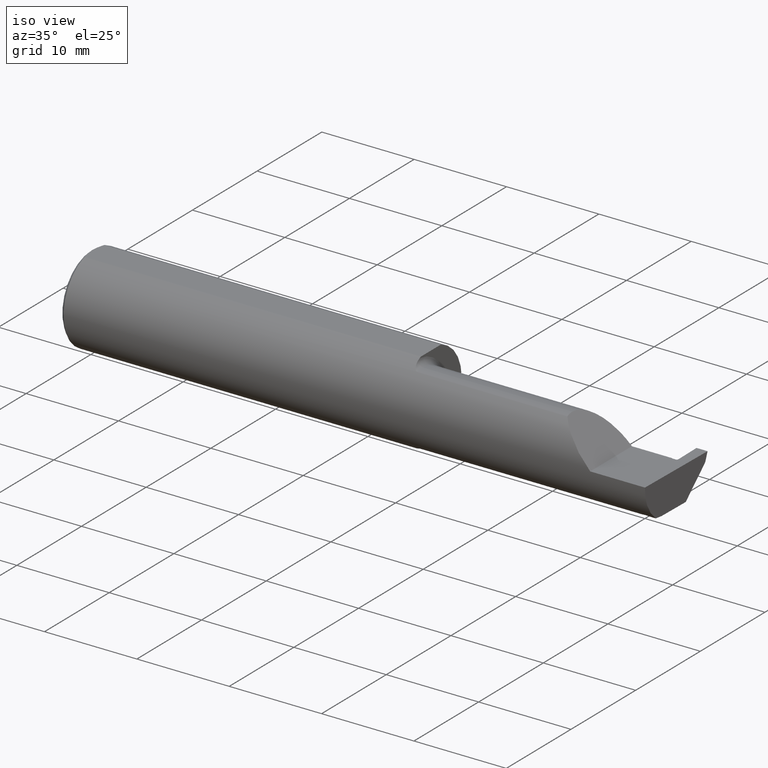
[diagram: clean part render]
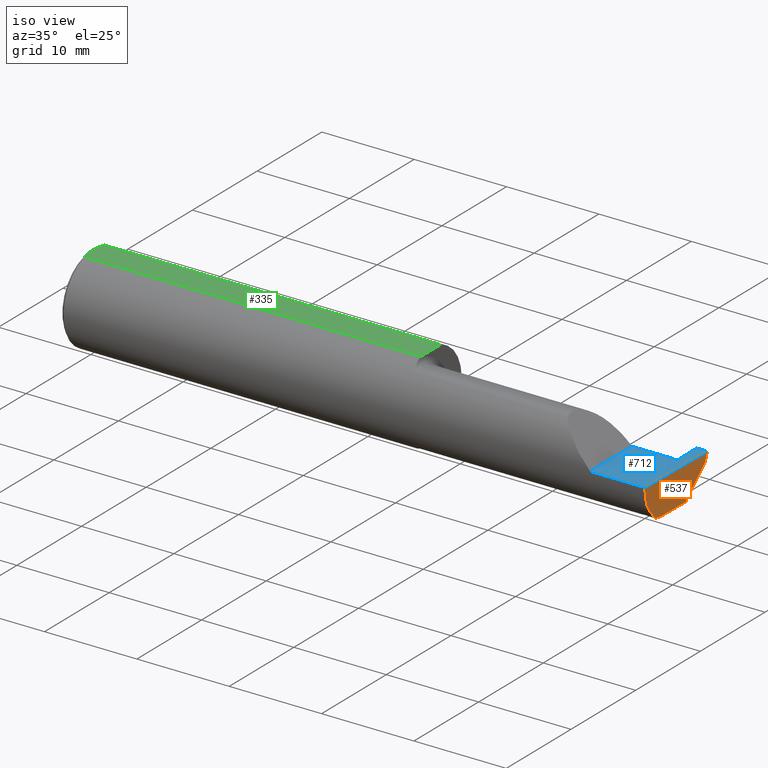
[diagram: same view with three faces highlighted in distinct colors, each labeled with its STEP entity id]
A machine part, iso view with three faces highlighted in distinct colors.
Their STEP definitions:

[orange] entity #537 — the highlighted planar face has unit normal (-0.9995, 0.0174, 0.0262).
#23 = CARTESIAN_POINT ( 'NONE',  ( 2.490903355898019367, -0.1172600179964007061, -0.1461167706989303094 ) ) ;
#25 = CARTESIAN_POINT ( 'NONE',  ( 2.490903355898019367, -0.1172600179964007061, -0.1461167706989303094 ) ) ;
#38 = FACE_OUTER_BOUND ( 'NONE', #747, .T. ) ;
#52 = ORIENTED_EDGE ( 'NONE', *, *, #253, .T. ) ;
#56 = DIRECTION ( 'NONE',  ( -0.01745240643727703073, -0.9998476951563912696, 0.000000000000000000 ) ) ;
#57 = ORIENTED_EDGE ( 'NONE', *, *, #1023, .F. ) ;
#65 = CARTESIAN_POINT ( 'NONE',  ( 2.493506715846705468, -0.1873499999999999888, 0.000000000000000000 ) ) ;
#88 = AXIS2_PLACEMENT_3D ( 'NONE', #454, #765, #444 ) ;
#120 = EDGE_CURVE ( 'NONE', #434, #223, #339, .T. ) ;
#127 = EDGE_CURVE ( 'NONE', #693, #223, #656, .T. ) ;
#151 = CARTESIAN_POINT ( 'NONE',  ( 2.498789266617083449, 0.1723030515431495657, -0.03799999999999999212 ) ) ;
#196 = LINE ( 'NONE', #766, #1004 ) ;
#223 = VERTEX_POINT ( 'NONE', #294 ) ;
#235 = VERTEX_POINT ( 'NONE', #538 ) ;
#245 = LINE ( 'NONE', #271, #982 ) ;
#253 = EDGE_CURVE ( 'NONE', #235, #295, #196, .T. ) ;
#271 = CARTESIAN_POINT ( 'NONE',  ( 2.498695265107655938, 0.1701492753368748778, -0.04015377620627467309 ) ) ;
#285 = PLANE ( 'NONE',  #88 ) ;
#294 = CARTESIAN_POINT ( 'NONE',  ( 2.491393556036329837, -0.08334999999999996578, -0.1499999999999999944 ) ) ;
#295 = VERTEX_POINT ( 'NONE', #65 ) ;
#297 = CARTESIAN_POINT ( 'NONE',  ( 2.499908263133603814, 0.1837144758152614021, -0.002879247381999359371 ) ) ;
#337 = DIRECTION ( 'NONE',  ( -0.03084697155452398656, -0.7067702824630919256, -0.7067702824630897052 ) ) ;
#339 =( BOUNDED_CURVE ( )  B_SPLINE_CURVE ( 3, ( #25, #344, #992, #913 ),
 .UNSPECIFIED., .F., .F. ) 
 B_SPLINE_CURVE_WITH_KNOTS ( ( 4, 4 ),
 ( 0.3598356817164758414, 0.5878737167659208174 ),
 .UNSPECIFIED. ) 
 CURVE ( )  GEOMETRIC_REPRESENTATION_ITEM ( )  RATIONAL_B_SPLINE_CURVE ( ( 1.000000000000000000, 0.9956712472009929815, 0.9956712472009929815, 1.000000000000000000 ) ) 
 REPRESENTATION_ITEM ( '' )  );
#344 = CARTESIAN_POINT ( 'NONE',  ( 2.491029992219911282, -0.1061291577212409853, -0.1486999626928446061 ) ) ;
#363 = CARTESIAN_POINT ( 'NONE',  ( 2.494809345111306254, 0.1123404250442412711, -0.1499999999999999944 ) ) ;
#384 = LINE ( 'NONE', #297, #831 ) ;
#404 =( BOUNDED_CURVE ( )  B_SPLINE_CURVE ( 3, ( #741, #499, #503, #838 ),
 .UNSPECIFIED., .F., .T. ) 
 B_SPLINE_CURVE_WITH_KNOTS ( ( 4, 4 ),
 ( 0.08839520912052870050, 0.9829226100289757406 ),
 .UNSPECIFIED. ) 
 CURVE ( )  GEOMETRIC_REPRESENTATION_ITEM ( )  RATIONAL_B_SPLINE_CURVE ( ( 1.000000000000000000, 0.9344226172588803170, 0.9344226172588803170, 1.000000000000000000 ) ) 
 REPRESENTATION_ITEM ( '' )  );
#429 = ORIENTED_EDGE ( 'NONE', *, *, #720, .F. ) ;
#434 = VERTEX_POINT ( 'NONE', #23 ) ;
#444 = DIRECTION ( 'NONE',  ( 0.02618093305822682959, 0.000000000000000000, 0.9996572206232497981 ) ) ;
#454 = CARTESIAN_POINT ( 'NONE',  ( 2.500000000000000000, 0.1846500000000000363, 0.000000000000000000 ) ) ;
#499 = CARTESIAN_POINT ( 'NONE',  ( 2.491063981715931686, -0.1623470442677541759, -0.1099340280425337990 ) ) ;
#503 = CARTESIAN_POINT ( 'NONE',  ( 2.491992669264299742, -0.1873499999999999888, -0.05781030015605115313 ) ) ;
#537 = ADVANCED_FACE ( 'NONE', ( #38 ), #285, .F. ) ;
#538 = CARTESIAN_POINT ( 'NONE',  ( 2.500000000000000000, 0.1846500000000000363, 0.000000000000000000 ) ) ;
#623 = DIRECTION ( 'NONE',  ( -0.03028809442608968241, -0.3088752205991470157, -0.9506201814793669991 ) ) ;
#626 = VERTEX_POINT ( 'NONE', #151 ) ;
#654 = ORIENTED_EDGE ( 'NONE', *, *, #120, .T. ) ;
#656 = LINE ( 'NONE', #363, #871 ) ;
#693 = VERTEX_POINT ( 'NONE', #788 ) ;
#720 = EDGE_CURVE ( 'NONE', #235, #626, #384, .T. ) ;
#741 = CARTESIAN_POINT ( 'NONE',  ( 2.490903355898019367, -0.1172600179964007061, -0.1461167706989303094 ) ) ;
#747 = EDGE_LOOP ( 'NONE', ( #654, #919, #57, #429, #52, #828 ) ) ;
#765 = DIRECTION ( 'NONE',  ( -0.9995050723230146650, 0.01744642593347454917, 0.02617694830787320806 ) ) ;
#766 = CARTESIAN_POINT ( 'NONE',  ( 2.500000000000000000, 0.1846500000000000363, 0.000000000000000000 ) ) ;
#788 = CARTESIAN_POINT ( 'NONE',  ( 2.493901029378150724, 0.06030305154314920951, -0.1499999999999999944 ) ) ;
#828 = ORIENTED_EDGE ( 'NONE', *, *, #1014, .F. ) ;
#831 = VECTOR ( 'NONE', #623, 39.37007874015748854 ) ;
#838 = CARTESIAN_POINT ( 'NONE',  ( 2.493506715846705468, -0.1873499999999999888, 0.000000000000000000 ) ) ;
#871 = VECTOR ( 'NONE', #1013, 39.37007874015748143 ) ;
#913 = CARTESIAN_POINT ( 'NONE',  ( 2.491393556036329837, -0.08334999999999996578, -0.1499999999999999944 ) ) ;
#919 = ORIENTED_EDGE ( 'NONE', *, *, #127, .F. ) ;
#982 = VECTOR ( 'NONE', #337, 39.37007874015748143 ) ;
#992 = CARTESIAN_POINT ( 'NONE',  ( 2.491194102659540111, -0.09477667630339421667, -0.1499999999999999944 ) ) ;
#1004 = VECTOR ( 'NONE', #56, 39.37007874015748143 ) ;
#1013 = DIRECTION ( 'NONE',  ( -0.01745240643727703073, -0.9998476951563912696, 0.000000000000000000 ) ) ;
#1014 = EDGE_CURVE ( 'NONE', #434, #295, #404, .T. ) ;
#1023 = EDGE_CURVE ( 'NONE', #626, #693, #245, .T. ) ;

[blue] entity #712 — the highlighted planar face has unit normal (-0, 0, -1).
#8 = DIRECTION ( 'NONE',  ( -0.000000000000000000, 1.000000000000000000, -0.000000000000000000 ) ) ;
#44 = CARTESIAN_POINT ( 'NONE',  ( 2.260000000000000231, -0.1873499999999999888, 2.939152317953647352E-17 ) ) ;
#46 = VERTEX_POINT ( 'NONE', #226 ) ;
#56 = DIRECTION ( 'NONE',  ( -0.01745240643727703073, -0.9998476951563912696, 0.000000000000000000 ) ) ;
#59 = EDGE_CURVE ( 'NONE', #970, #676, #729, .T. ) ;
#65 = CARTESIAN_POINT ( 'NONE',  ( 2.493506715846705468, -0.1873499999999999888, 0.000000000000000000 ) ) ;
#68 = CARTESIAN_POINT ( 'NONE',  ( 2.260000000000000231, -0.2000000000000000111, 2.939152317953647352E-17 ) ) ;
#96 = EDGE_LOOP ( 'NONE', ( #853, #993, #119, #456, #470, #214, #1032, #609, #519 ) ) ;
#115 = CARTESIAN_POINT ( 'NONE',  ( 2.452999999986550161, 0.1846500000000000363, -3.367778697655196529E-19 ) ) ;
#116 = CARTESIAN_POINT ( 'NONE',  ( 3.749399456654646757E-32, -0.1873499999999999888, 3.061616997868384127E-16 ) ) ;
#119 = ORIENTED_EDGE ( 'NONE', *, *, #524, .F. ) ;
#138 = DIRECTION ( 'NONE',  ( 1.000000000000000000, 0.000000000000000000, 0.000000000000000000 ) ) ;
#153 = CARTESIAN_POINT ( 'NONE',  ( 2.432999999988582296, 0.06464999999899190275, 1.634762610386960201E-10 ) ) ;
#154 = CARTESIAN_POINT ( 'NONE',  ( 2.447971356043616709, 0.06464999999999866687, -4.347370617524082342E-11 ) ) ;
#182 = EDGE_CURVE ( 'NONE', #295, #210, #518, .T. ) ;
#196 = LINE ( 'NONE', #766, #1004 ) ;
#197 = B_SPLINE_CURVE_WITH_KNOTS ( 'NONE', 1,
 ( #115, #798 ),
 .UNSPECIFIED., .F., .F.,
 ( 2, 2 ),
 ( 6.218240129447692272E-15, 0.002867533701424563632 ),
 .UNSPECIFIED. ) ;
#210 = VERTEX_POINT ( 'NONE', #44 ) ;
#214 = ORIENTED_EDGE ( 'NONE', *, *, #59, .T. ) ;
#215 = LINE ( 'NONE', #915, #1017 ) ;
#226 = CARTESIAN_POINT ( 'NONE',  ( 2.431000000000559602, 0.06664999999944079545, 9.135099441658725058E-18 ) ) ;
#228 = CARTESIAN_POINT ( 'NONE',  ( 2.500000000000000000, -0.2000000000000000111, 0.000000000000000000 ) ) ;
#235 = VERTEX_POINT ( 'NONE', #538 ) ;
#253 = EDGE_CURVE ( 'NONE', #235, #295, #196, .T. ) ;
#288 = AXIS2_PLACEMENT_3D ( 'NONE', #228, #1024, #872 ) ;
#295 = VERTEX_POINT ( 'NONE', #65 ) ;
#315 = CARTESIAN_POINT ( 'NONE',  ( 2.447971356043616709, 0.06464999999999866687, -4.347370617524082342E-11 ) ) ;
#319 = B_SPLINE_CURVE_WITH_KNOTS ( 'NONE', 1,
 ( #412, #875 ),
 .UNSPECIFIED., .F., .F.,
 ( 2, 2 ),
 ( 0.000000000000000000, 7.184204876150140906E-05 ),
 .UNSPECIFIED. ) ;
#340 = VERTEX_POINT ( 'NONE', #1031 ) ;
#412 = CARTESIAN_POINT ( 'NONE',  ( 2.432999999988582296, 0.06464999999899190275, 1.634762610386960201E-10 ) ) ;
#456 = ORIENTED_EDGE ( 'NONE', *, *, #617, .T. ) ;
#468 = FACE_OUTER_BOUND ( 'NONE', #96, .T. ) ;
#470 = ORIENTED_EDGE ( 'NONE', *, *, #987, .T. ) ;
#518 = LINE ( 'NONE', #116, #818 ) ;
#519 = ORIENTED_EDGE ( 'NONE', *, *, #978, .F. ) ;
#524 = EDGE_CURVE ( 'NONE', #897, #235, #596, .T. ) ;
#538 = CARTESIAN_POINT ( 'NONE',  ( 2.500000000000000000, 0.1846500000000000363, 0.000000000000000000 ) ) ;
#547 = VECTOR ( 'NONE', #695, 39.37007874015748143 ) ;
#554 = CARTESIAN_POINT ( 'NONE',  ( 2.432999999988582296, 0.06464999999899190275, 1.634762610386960201E-10 ) ) ;
#596 = LINE ( 'NONE', #601, #547 ) ;
#601 = CARTESIAN_POINT ( 'NONE',  ( 2.399999999999999911, 0.1846500000000000363, -3.367778697655196529E-19 ) ) ;
#609 = ORIENTED_EDGE ( 'NONE', *, *, #855, .F. ) ;
#617 = EDGE_CURVE ( 'NONE', #897, #340, #197, .T. ) ;
#622 = CARTESIAN_POINT ( 'NONE',  ( 2.452999999986550161, 0.1846500000000000363, -3.367778697655196529E-19 ) ) ;
#638 = LINE ( 'NONE', #68, #754 ) ;
#676 = VERTEX_POINT ( 'NONE', #554 ) ;
#684 = DIRECTION ( 'NONE',  ( -1.000000000000000000, -0.000000000000000000, -0.000000000000000000 ) ) ;
#695 = DIRECTION ( 'NONE',  ( 1.000000000000000000, -0.000000000000000000, -0.000000000000000000 ) ) ;
#703 = VERTEX_POINT ( 'NONE', #951 ) ;
#712 = ADVANCED_FACE ( 'NONE', ( #468 ), #962, .F. ) ;
#715 = CARTESIAN_POINT ( 'NONE',  ( 2.454970289910081593, 0.07177216684492375431, -4.877016447508004469E-11 ) ) ;
#729 = B_SPLINE_CURVE_WITH_KNOTS ( 'NONE', 1,
 ( #315, #153 ),
 .UNSPECIFIED., .F., .F.,
 ( 2, 2 ),
 ( 0.000000000000000000, 0.0003802724437978674543 ),
 .UNSPECIFIED. ) ;
#730 =( BOUNDED_CURVE ( )  B_SPLINE_CURVE ( 3, ( #715, #746, #909, #762 ),
 .UNSPECIFIED., .F., .F. ) 
 B_SPLINE_CURVE_WITH_KNOTS ( ( 4, 4 ),
 ( 1.301042606982605513E-18, 0.0002808519284744391900 ),
 .UNSPECIFIED. ) 
 CURVE ( )  GEOMETRIC_REPRESENTATION_ITEM ( )  RATIONAL_B_SPLINE_CURVE ( ( 1.000000000000000000, 0.8006061761999021531, 0.8006061761999021531, 1.000000000000000000 ) ) 
 REPRESENTATION_ITEM ( '' )  );
#746 = CARTESIAN_POINT ( 'NONE',  ( 2.455042847893950775, 0.06761532263369882112, -4.782921970906206398E-11 ) ) ;
#754 = VECTOR ( 'NONE', #8, 39.37007874015748143 ) ;
#762 = CARTESIAN_POINT ( 'NONE',  ( 2.447971356043616709, 0.06464999999999866687, -4.347370617524082342E-11 ) ) ;
#766 = CARTESIAN_POINT ( 'NONE',  ( 2.500000000000000000, 0.1846500000000000363, 0.000000000000000000 ) ) ;
#798 = CARTESIAN_POINT ( 'NONE',  ( 2.454970289910081593, 0.07177216684492375431, -4.877016447508004469E-11 ) ) ;
#818 = VECTOR ( 'NONE', #684, 39.37007874015748143 ) ;
#853 = ORIENTED_EDGE ( 'NONE', *, *, #182, .F. ) ;
#855 = EDGE_CURVE ( 'NONE', #703, #46, #215, .T. ) ;
#872 = DIRECTION ( 'NONE',  ( -1.000000000000000000, 0.000000000000000000, 1.224646799147353700E-16 ) ) ;
#875 = CARTESIAN_POINT ( 'NONE',  ( 2.431000000000559602, 0.06664999999944079545, 9.135099441658725058E-18 ) ) ;
#897 = VERTEX_POINT ( 'NONE', #622 ) ;
#909 = CARTESIAN_POINT ( 'NONE',  ( 2.452128833457462687, 0.06464999999995883762, -4.700298955626800752E-11 ) ) ;
#915 = CARTESIAN_POINT ( 'NONE',  ( 1.450000000000000178, 0.06665000000000002867, 1.285879139104721472E-16 ) ) ;
#916 = EDGE_CURVE ( 'NONE', #676, #46, #319, .T. ) ;
#951 = CARTESIAN_POINT ( 'NONE',  ( 2.260000000000000231, 0.06665000000000002867, 2.939152317953647352E-17 ) ) ;
#962 = PLANE ( 'NONE',  #288 ) ;
#970 = VERTEX_POINT ( 'NONE', #154 ) ;
#978 = EDGE_CURVE ( 'NONE', #210, #703, #638, .T. ) ;
#987 = EDGE_CURVE ( 'NONE', #340, #970, #730, .T. ) ;
#993 = ORIENTED_EDGE ( 'NONE', *, *, #253, .F. ) ;
#1004 = VECTOR ( 'NONE', #56, 39.37007874015748143 ) ;
#1017 = VECTOR ( 'NONE', #138, 39.37007874015748143 ) ;
#1024 = DIRECTION ( 'NONE',  ( -1.224646799147353700E-16, 0.000000000000000000, -1.000000000000000000 ) ) ;
#1031 = CARTESIAN_POINT ( 'NONE',  ( 2.454970289910081593, 0.07177216684492375431, -4.877016447508004469E-11 ) ) ;
#1032 = ORIENTED_EDGE ( 'NONE', *, *, #916, .T. ) ;

[green] entity #335 — the highlighted planar face has unit normal (0, -0, 1).
#9 = ORIENTED_EDGE ( 'NONE', *, *, #84, .T. ) ;
#21 = ORIENTED_EDGE ( 'NONE', *, *, #571, .T. ) ;
#79 = CARTESIAN_POINT ( 'NONE',  ( 1.450000000000000178, 0.06039039658754216666, 0.1773499999999999799 ) ) ;
#82 = ORIENTED_EDGE ( 'NONE', *, *, #604, .T. ) ;
#84 = EDGE_CURVE ( 'NONE', #929, #1036, #900, .T. ) ;
#98 = LINE ( 'NONE', #749, #906 ) ;
#100 = CARTESIAN_POINT ( 'NONE',  ( 0.01499999999999756042, 0.06039039658754215278, 0.1773499999999999799 ) ) ;
#111 = DIRECTION ( 'NONE',  ( 1.000000000000000000, 0.000000000000000000, 0.000000000000000000 ) ) ;
#167 = CARTESIAN_POINT ( 'NONE',  ( 0.000000000000000000, 0.06039039658753697637, 0.1773499999999999799 ) ) ;
#178 = DIRECTION ( 'NONE',  ( -1.000000000000000000, -0.000000000000000000, -0.000000000000000000 ) ) ;
#192 = CARTESIAN_POINT ( 'NONE',  ( 0.000000000000000000, -0.06039039658753697637, 0.1773499999999999799 ) ) ;
#202 = VECTOR ( 'NONE', #178, 39.37007874015748143 ) ;
#234 = DIRECTION ( 'NONE',  ( 0.000000000000000000, -0.000000000000000000, 1.000000000000000000 ) ) ;
#238 = EDGE_CURVE ( 'NONE', #254, #810, #861, .T. ) ;
#254 = VERTEX_POINT ( 'NONE', #381 ) ;
#269 = CARTESIAN_POINT ( 'NONE',  ( 0.004999999999999835305, 2.941982542510190671E-17, 0.1773499999999999799 ) ) ;
#292 = CARTESIAN_POINT ( 'NONE',  ( 0.004999999999999833571, -0.01026662907944655458, 0.1773499999999999521 ) ) ;
#320 = CARTESIAN_POINT ( 'NONE',  ( 0.004999999999999835305, 2.941982542510190671E-17, 0.1773499999999999799 ) ) ;
#335 = ADVANCED_FACE ( 'NONE', ( #476 ), #969, .T. ) ;
#359 = CARTESIAN_POINT ( 'NONE',  ( 0.004999999999999839642, 0.01027925662263861305, 0.1773499999999999799 ) ) ;
#367 = CARTESIAN_POINT ( 'NONE',  ( 0.01185291896084217714, 0.05062716160312498437, 0.1773499999999999521 ) ) ;
#371 = VERTEX_POINT ( 'NONE', #320 ) ;
#374 = CARTESIAN_POINT ( 'NONE',  ( 0.01499999999999999944, -0.06039039658753697637, 0.1773499999999999799 ) ) ;
#381 = CARTESIAN_POINT ( 'NONE',  ( 0.01499999999999999944, -0.06039039658753697637, 0.1773499999999999799 ) ) ;
#393 = CARTESIAN_POINT ( 'NONE',  ( 2.500000000000000000, -0.1873500000000000165, 0.1773499999999999799 ) ) ;
#441 = CARTESIAN_POINT ( 'NONE',  ( 0.005896899252109314912, -0.02043863390046160924, 0.1773500000000000354 ) ) ;
#476 = FACE_OUTER_BOUND ( 'NONE', #797, .T. ) ;
#486 = DIRECTION ( 'NONE',  ( 1.000000000000000000, 0.000000000000000000, -0.000000000000000000 ) ) ;
#494 = EDGE_CURVE ( 'NONE', #810, #929, #98, .T. ) ;
#571 = EDGE_CURVE ( 'NONE', #1036, #371, #953, .T. ) ;
#583 = VECTOR ( 'NONE', #111, 39.37007874015748143 ) ;
#598 = B_SPLINE_CURVE_WITH_KNOTS ( 'NONE', 3,
 ( #269, #292, #441, #611, #845, #374 ),
 .UNSPECIFIED., .F., .F.,
 ( 4, 2, 4 ),
 ( 0.005750933109916887831, 0.006521788775031543001, 0.007292644440146199038 ),
 .UNSPECIFIED. ) ;
#604 = EDGE_CURVE ( 'NONE', #371, #254, #598, .T. ) ;
#611 = CARTESIAN_POINT ( 'NONE',  ( 0.009318557230853204490, -0.04061090184993776386, 0.1773499999999999799 ) ) ;
#666 = DIRECTION ( 'NONE',  ( -0.000000000000000000, 1.000000000000000000, 0.000000000000000000 ) ) ;
#686 = ORIENTED_EDGE ( 'NONE', *, *, #238, .T. ) ;
#749 = CARTESIAN_POINT ( 'NONE',  ( 1.450000000000000178, -0.1873500000000000165, 0.1773499999999999799 ) ) ;
#773 = CARTESIAN_POINT ( 'NONE',  ( 0.009346310357820472939, 0.04072930668827419443, 0.1773500000000000354 ) ) ;
#776 = CARTESIAN_POINT ( 'NONE',  ( 1.450000000000000178, -0.06039039658753699025, 0.1773499999999999799 ) ) ;
#797 = EDGE_LOOP ( 'NONE', ( #686, #960, #9, #21, #82 ) ) ;
#810 = VERTEX_POINT ( 'NONE', #776 ) ;
#845 = CARTESIAN_POINT ( 'NONE',  ( 0.01186375298701897348, -0.05066077215909271098, 0.1773499999999999799 ) ) ;
#861 = LINE ( 'NONE', #192, #583 ) ;
#900 = LINE ( 'NONE', #167, #202 ) ;
#906 = VECTOR ( 'NONE', #666, 39.37007874015748143 ) ;
#929 = VERTEX_POINT ( 'NONE', #79 ) ;
#933 = CARTESIAN_POINT ( 'NONE',  ( 0.004999999999999835305, 2.941982542510190671E-17, 0.1773499999999999799 ) ) ;
#936 = AXIS2_PLACEMENT_3D ( 'NONE', #393, #234, #486 ) ;
#953 = B_SPLINE_CURVE_WITH_KNOTS ( 'NONE', 3,
 ( #999, #367, #773, #1018, #359, #933 ),
 .UNSPECIFIED., .F., .F.,
 ( 4, 2, 4 ),
 ( 0.004207325536406422359, 0.004979129323161655095, 0.005750933109916887831 ),
 .UNSPECIFIED. ) ;
#960 = ORIENTED_EDGE ( 'NONE', *, *, #494, .T. ) ;
#969 = PLANE ( 'NONE',  #936 ) ;
#999 = CARTESIAN_POINT ( 'NONE',  ( 0.01499999999999756042, 0.06039039658754215278, 0.1773499999999999799 ) ) ;
#1018 = CARTESIAN_POINT ( 'NONE',  ( 0.005916828623699125177, 0.02060071390057613763, 0.1773499999999999799 ) ) ;
#1036 = VERTEX_POINT ( 'NONE', #100 ) ;